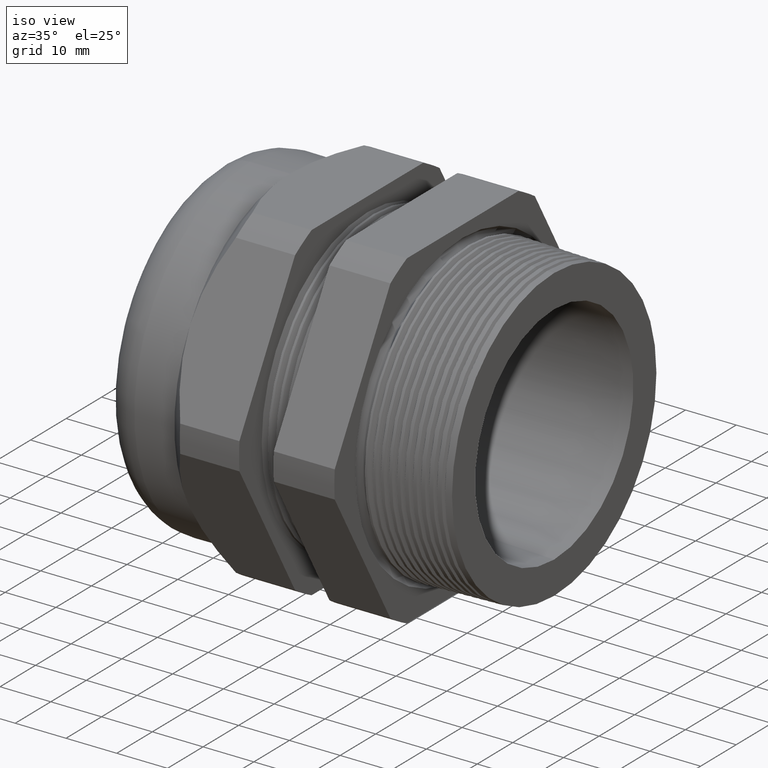
[diagram: clean part render]
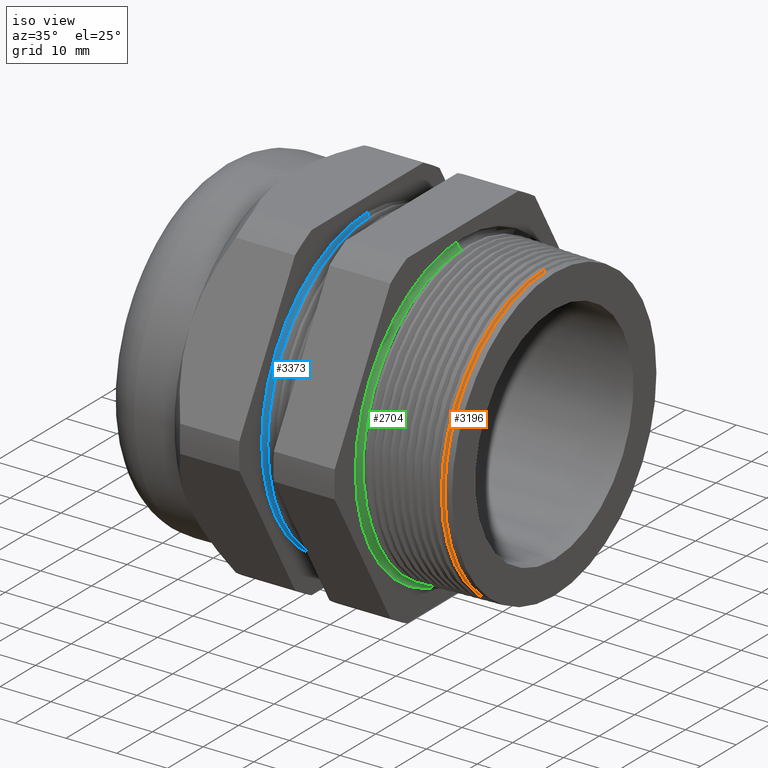
[diagram: same view with three faces highlighted in distinct colors, each labeled with its STEP entity id]
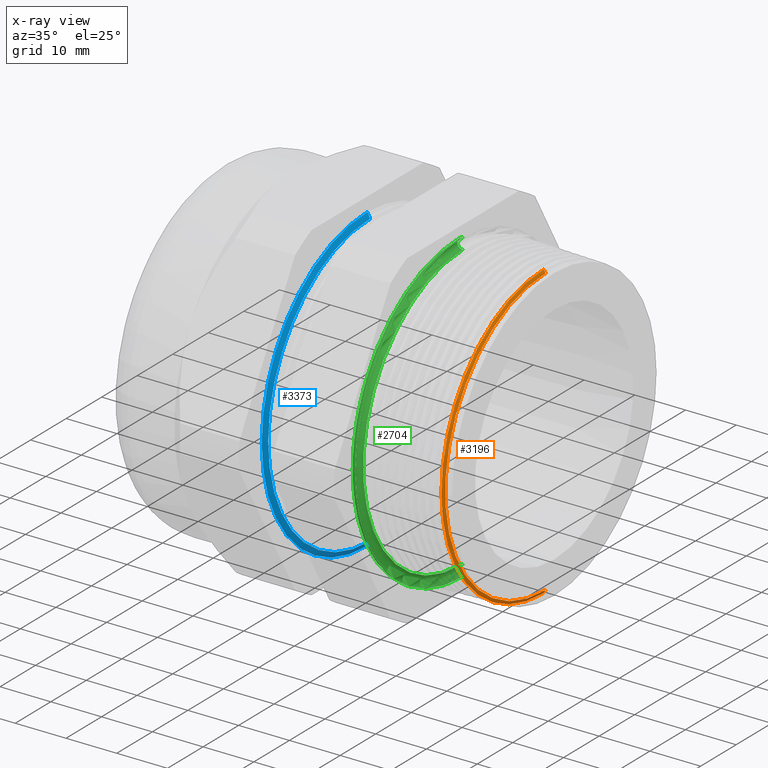
[diagram: x-ray of the same camera — body ghosted, the three highlighted faces saturated]
A machine part, iso view with three faces highlighted in distinct colors.
The next image is the same camera in x-ray (body ghosted, the three faces saturated) — at least one of them is partly hidden behind the body in this view.
Their STEP definitions:

[orange] entity #3196 — the highlighted conical surface has half-angle 61.5 deg.
#678 = CARTESIAN_POINT ( 'NONE',  ( 0.3320390190945656200, 0.0000000000000000000, 1.110045996570563600 ) ) ;
#679 = CARTESIAN_POINT ( 'NONE',  ( 0.3320390190945656200, 1.374184370192045900E-016, -1.110045996570563600 ) ) ;
#781 = CARTESIAN_POINT ( 'NONE',  ( 0.3189421710857152100, 1.389492936477758500E-016, -1.134167389932069700 ) ) ;
#782 = DIRECTION ( 'NONE',  ( -0.4771587602596063500, 1.076240564057396000E-016, -0.8788171126619663800 ) ) ;
#783 = VECTOR ( 'NONE', #782, 39.37007874015748900 ) ;
#784 = CARTESIAN_POINT ( 'NONE',  ( 0.3100000000000000000, 1.409123698956180700E-016, -1.150636820295670300 ) ) ;
#785 = LINE ( 'NONE', #784, #783 ) ;
#871 = DIRECTION ( 'NONE',  ( -0.4771587602596063500, 0.0000000000000000000, 0.8788171126619663800 ) ) ;
#872 = VECTOR ( 'NONE', #871, 39.37007874015748900 ) ;
#873 = CARTESIAN_POINT ( 'NONE',  ( 0.3100000000000000000, 0.0000000000000000000, 1.150636820295670300 ) ) ;
#874 = LINE ( 'NONE', #873, #872 ) ;
#894 = CARTESIAN_POINT ( 'NONE',  ( 0.3189421710857152100, 0.0000000000000000000, 1.134167389932069700 ) ) ;
#1244 = DIRECTION ( 'NONE',  ( 0.0000000000000000000, 0.0000000000000000000, -1.000000000000000000 ) ) ;
#1245 = DIRECTION ( 'NONE',  ( 1.000000000000000000, 0.0000000000000000000, 0.0000000000000000000 ) ) ;
#1246 = CARTESIAN_POINT ( 'NONE',  ( 0.3320390190945656200, 0.0000000000000000000, 0.0000000000000000000 ) ) ;
#1247 = AXIS2_PLACEMENT_3D ( 'NONE', #1246, #1245, #1244 ) ;
#1248 = CIRCLE ( 'NONE', #1247, 1.110045996570563600 ) ;
#1378 = DIRECTION ( 'NONE',  ( 0.0000000000000000000, 0.0000000000000000000, 1.000000000000000000 ) ) ;
#1379 = DIRECTION ( 'NONE',  ( -1.000000000000000000, 0.0000000000000000000, 0.0000000000000000000 ) ) ;
#1380 = CARTESIAN_POINT ( 'NONE',  ( 0.3100000000000000000, 0.0000000000000000000, 0.0000000000000000000 ) ) ;
#1381 = AXIS2_PLACEMENT_3D ( 'NONE', #1380, #1379, #1378 ) ;
#1382 = CONICAL_SURFACE ( 'NONE', #1381, 1.150636820295670300, 1.073377489976514900 ) ;
#1383 = FACE_OUTER_BOUND ( 'NONE', #3197, .T. ) ;
#1844 = DIRECTION ( 'NONE',  ( 0.0000000000000000000, 0.0000000000000000000, 1.000000000000000000 ) ) ;
#1845 = DIRECTION ( 'NONE',  ( 1.000000000000000000, 0.0000000000000000000, 0.0000000000000000000 ) ) ;
#1846 = AXIS2_PLACEMENT_3D ( 'NONE', #1853, #1845, #1844 ) ;
#1847 = CIRCLE ( 'NONE', #1846, 1.134167389932069700 ) ;
#1853 = CARTESIAN_POINT ( 'NONE',  ( 0.3189421710857152100, 0.0000000000000000000, 0.0000000000000000000 ) ) ;
#2859 = VERTEX_POINT ( 'NONE', #679 ) ;
#2860 = VERTEX_POINT ( 'NONE', #678 ) ;
#2903 = EDGE_CURVE ( 'NONE', #2859, #2904, #785, .T. ) ;
#2904 = VERTEX_POINT ( 'NONE', #781 ) ;
#2939 = VERTEX_POINT ( 'NONE', #894 ) ;
#2950 = EDGE_CURVE ( 'NONE', #2860, #2939, #874, .T. ) ;
#3118 = EDGE_CURVE ( 'NONE', #2860, #2859, #1248, .T. ) ;
#3119 = ORIENTED_EDGE ( 'NONE', *, *, #2950, .T. ) ;
#3120 = ORIENTED_EDGE ( 'NONE', *, *, #3676, .T. ) ;
#3196 = ADVANCED_FACE ( 'NONE', ( #1383 ), #1382, .T. ) ;
#3197 = EDGE_LOOP ( 'NONE', ( #3198, #3199, #3119, #3120 ) ) ;
#3198 = ORIENTED_EDGE ( 'NONE', *, *, #2903, .F. ) ;
#3199 = ORIENTED_EDGE ( 'NONE', *, *, #3118, .F. ) ;
#3676 = EDGE_CURVE ( 'NONE', #2939, #2904, #1847, .T. ) ;

[blue] entity #3373 — the highlighted conical surface has half-angle 61.5 deg.
#404 = CARTESIAN_POINT ( 'NONE',  ( -1.049450000000000000, 0.0000000000000000000, 1.170000000000000400 ) ) ;
#405 = DIRECTION ( 'NONE',  ( -0.4771587602596179000, 1.076240564057388100E-016, -0.8788171126619600500 ) ) ;
#406 = VECTOR ( 'NONE', #405, 39.37007874015748900 ) ;
#407 = CARTESIAN_POINT ( 'NONE',  ( -1.049450000000000000, 1.432836755002403800E-016, -1.170000000000000400 ) ) ;
#408 = LINE ( 'NONE', #407, #406 ) ;
#512 = DIRECTION ( 'NONE',  ( -0.4771587602596179000, 0.0000000000000000000, 0.8788171126619600500 ) ) ;
#513 = VECTOR ( 'NONE', #512, 39.37007874015748900 ) ;
#514 = CARTESIAN_POINT ( 'NONE',  ( -1.049450000000000000, 0.0000000000000000000, 1.170000000000000400 ) ) ;
#515 = LINE ( 'NONE', #514, #513 ) ;
#523 = CARTESIAN_POINT ( 'NONE',  ( -1.049450000000000000, 1.432836755002403800E-016, -1.170000000000000400 ) ) ;
#524 = CARTESIAN_POINT ( 'NONE',  ( -1.027410980905433300, 1.407241707208864200E-016, 1.129409176274893200 ) ) ;
#525 = CARTESIAN_POINT ( 'NONE',  ( -1.027410980905433300, 0.0000000000000000000, -1.129409176274893200 ) ) ;
#1323 = CARTESIAN_POINT ( 'NONE',  ( -1.049450000000000000, 0.0000000000000000000, 0.0000000000000000000 ) ) ;
#1580 = CONICAL_SURFACE ( 'NONE', #1583, 1.170000000000000400, 1.073377489976501800 ) ;
#1583 = AXIS2_PLACEMENT_3D ( 'NONE', #1323, #3978, #3979 ) ;
#1584 = FACE_OUTER_BOUND ( 'NONE', #3374, .T. ) ;
#1585 = DIRECTION ( 'NONE',  ( 0.0000000000000000000, 0.0000000000000000000, -1.000000000000000000 ) ) ;
#1586 = DIRECTION ( 'NONE',  ( 1.000000000000000000, 0.0000000000000000000, 0.0000000000000000000 ) ) ;
#1587 = CARTESIAN_POINT ( 'NONE',  ( -1.027410980905433300, 0.0000000000000000000, 0.0000000000000000000 ) ) ;
#1588 = AXIS2_PLACEMENT_3D ( 'NONE', #1587, #1586, #1585 ) ;
#1589 = CIRCLE ( 'NONE', #1588, 1.129409176274893200 ) ;
#1642 = DIRECTION ( 'NONE',  ( 0.0000000000000000000, 0.0000000000000000000, -1.000000000000000000 ) ) ;
#1643 = DIRECTION ( 'NONE',  ( 1.000000000000000000, 0.0000000000000000000, 0.0000000000000000000 ) ) ;
#1644 = CARTESIAN_POINT ( 'NONE',  ( -1.049450000000000000, 0.0000000000000000000, 0.0000000000000000000 ) ) ;
#1645 = AXIS2_PLACEMENT_3D ( 'NONE', #1644, #1643, #1642 ) ;
#1646 = CIRCLE ( 'NONE', #1645, 1.170000000000000400 ) ;
#2720 = EDGE_CURVE ( 'NONE', #2762, #2764, #408, .T. ) ;
#2721 = VERTEX_POINT ( 'NONE', #404 ) ;
#2762 = VERTEX_POINT ( 'NONE', #525 ) ;
#2763 = VERTEX_POINT ( 'NONE', #524 ) ;
#2764 = VERTEX_POINT ( 'NONE', #523 ) ;
#2769 = EDGE_CURVE ( 'NONE', #2763, #2721, #515, .T. ) ;
#3370 = EDGE_CURVE ( 'NONE', #2763, #2762, #1589, .T. ) ;
#3373 = ADVANCED_FACE ( 'NONE', ( #1584 ), #1580, .T. ) ;
#3374 = EDGE_LOOP ( 'NONE', ( #3375, #3376, #3377, #3378 ) ) ;
#3375 = ORIENTED_EDGE ( 'NONE', *, *, #2720, .F. ) ;
#3376 = ORIENTED_EDGE ( 'NONE', *, *, #3370, .F. ) ;
#3377 = ORIENTED_EDGE ( 'NONE', *, *, #2769, .T. ) ;
#3378 = ORIENTED_EDGE ( 'NONE', *, *, #3379, .T. ) ;
#3379 = EDGE_CURVE ( 'NONE', #2721, #2764, #1646, .T. ) ;
#3978 = DIRECTION ( 'NONE',  ( -1.000000000000000000, 0.0000000000000000000, 0.0000000000000000000 ) ) ;
#3979 = DIRECTION ( 'NONE',  ( 0.0000000000000000000, 0.0000000000000000000, 1.000000000000000000 ) ) ;

[green] entity #2704 — the highlighted toroidal blend (fillet) surface has major radius 29.0992 mm and minor (blend) radius 1.0795 mm.
#313 = CARTESIAN_POINT ( 'NONE',  ( -0.3089999999999999400, 1.350952975996681600E-016, 1.103136820295670200 ) ) ;
#371 = DIRECTION ( 'NONE',  ( 0.0000000000000000000, 0.0000000000000000000, -1.000000000000000000 ) ) ;
#372 = DIRECTION ( 'NONE',  ( 1.000000000000000000, 0.0000000000000000000, 0.0000000000000000000 ) ) ;
#373 = AXIS2_PLACEMENT_3D ( 'NONE', #375, #372, #371 ) ;
#374 = TOROIDAL_SURFACE ( 'NONE', #373, 1.145636820295670200, 0.04249999999999999600 ) ;
#375 = CARTESIAN_POINT ( 'NONE',  ( -0.3089999999999999400, 0.0000000000000000000, 0.0000000000000000000 ) ) ;
#381 = FACE_OUTER_BOUND ( 'NONE', #3898, .T. ) ;
#383 = DIRECTION ( 'NONE',  ( 0.0000000000000000000, 0.0000000000000000000, -1.000000000000000000 ) ) ;
#384 = DIRECTION ( 'NONE',  ( 1.000000000000000000, 0.0000000000000000000, 0.0000000000000000000 ) ) ;
#385 = AXIS2_PLACEMENT_3D ( 'NONE', #391, #384, #383 ) ;
#386 = CIRCLE ( 'NONE', #385, 1.103136820295670200 ) ;
#391 = CARTESIAN_POINT ( 'NONE',  ( -0.3089999999999999400, 0.0000000000000000000, 0.0000000000000000000 ) ) ;
#2208 = CARTESIAN_POINT ( 'NONE',  ( -0.3089999999999999400, 0.0000000000000000000, -1.103136820295670200 ) ) ;
#2256 = CIRCLE ( 'NONE', #2318, 0.04250000000000002400 ) ;
#2257 = CARTESIAN_POINT ( 'NONE',  ( -0.3100000000000000000, 0.0000000000000000000, -1.188125053961004000 ) ) ;
#2258 = DIRECTION ( 'NONE',  ( 0.0000000000000000000, 0.0000000000000000000, -1.000000000000000000 ) ) ;
#2259 = DIRECTION ( 'NONE',  ( -1.000000000000000000, 0.0000000000000000000, 0.0000000000000000000 ) ) ;
#2260 = CARTESIAN_POINT ( 'NONE',  ( -0.3100000000000000000, 0.0000000000000000000, 0.0000000000000000000 ) ) ;
#2261 = AXIS2_PLACEMENT_3D ( 'NONE', #2260, #2259, #2258 ) ;
#2262 = CIRCLE ( 'NONE', #2261, 1.188125053961004000 ) ;
#2263 = CARTESIAN_POINT ( 'NONE',  ( -0.3100000000000000000, 1.455033544320120000E-016, 1.188125053961004000 ) ) ;
#2264 = DIRECTION ( 'NONE',  ( 0.0000000000000000000, 1.224646799147352000E-016, 1.000000000000000000 ) ) ;
#2265 = DIRECTION ( 'NONE',  ( 0.0000000000000000000, 1.000000000000000000, -1.224646799147353200E-016 ) ) ;
#2266 = CARTESIAN_POINT ( 'NONE',  ( -0.3089999999999999400, 1.403000464960444100E-016, 1.145636820295670200 ) ) ;
#2267 = AXIS2_PLACEMENT_3D ( 'NONE', #2266, #2265, #2264 ) ;
#2268 = CIRCLE ( 'NONE', #2267, 0.04250000000000002400 ) ;
#2315 = DIRECTION ( 'NONE',  ( 0.0000000000000000000, 0.0000000000000000000, -1.000000000000000000 ) ) ;
#2316 = DIRECTION ( 'NONE',  ( 0.0000000000000000000, -1.000000000000000000, 0.0000000000000000000 ) ) ;
#2317 = CARTESIAN_POINT ( 'NONE',  ( -0.3089999999999999400, 0.0000000000000000000, -1.145636820295670200 ) ) ;
#2318 = AXIS2_PLACEMENT_3D ( 'NONE', #2317, #2316, #2315 ) ;
#2668 = VERTEX_POINT ( 'NONE', #313 ) ;
#2698 = EDGE_CURVE ( 'NONE', #2668, #3863, #386, .T. ) ;
#2704 = ADVANCED_FACE ( 'NONE', ( #381 ), #374, .F. ) ;
#3863 = VERTEX_POINT ( 'NONE', #2208 ) ;
#3898 = EDGE_LOOP ( 'NONE', ( #3899, #3900, #3903, #3906 ) ) ;
#3899 = ORIENTED_EDGE ( 'NONE', *, *, #2698, .F. ) ;
#3900 = ORIENTED_EDGE ( 'NONE', *, *, #3901, .T. ) ;
#3901 = EDGE_CURVE ( 'NONE', #2668, #3902, #2268, .T. ) ;
#3902 = VERTEX_POINT ( 'NONE', #2263 ) ;
#3903 = ORIENTED_EDGE ( 'NONE', *, *, #3904, .F. ) ;
#3904 = EDGE_CURVE ( 'NONE', #3905, #3902, #2262, .T. ) ;
#3905 = VERTEX_POINT ( 'NONE', #2257 ) ;
#3906 = ORIENTED_EDGE ( 'NONE', *, *, #3907, .F. ) ;
#3907 = EDGE_CURVE ( 'NONE', #3863, #3905, #2256, .T. ) ;